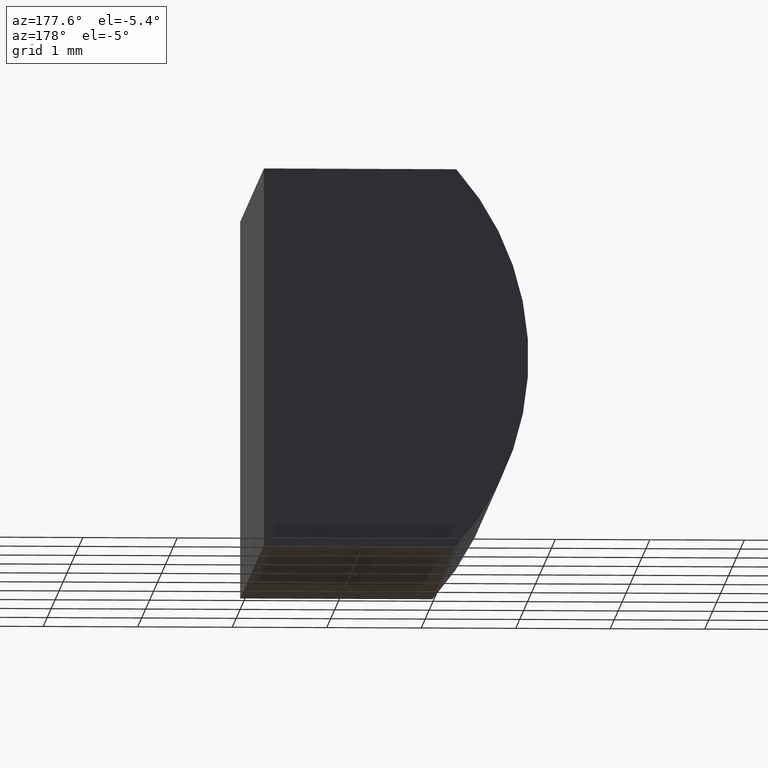
[diagram: clean part render]
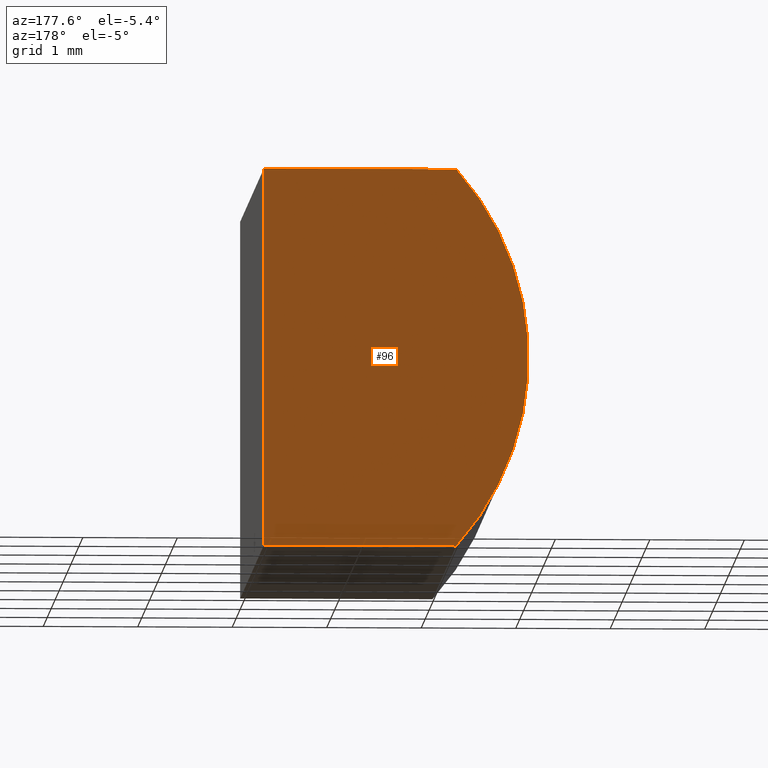
[diagram: same view with one face highlighted and labeled with its STEP entity id]
A machine part, auxiliary view. The second image highlights one B-rep face of the part: STEP entity #96.
In plain terms, the highlighted planar face has unit normal (0, 1, 0).
Its self-contained STEP definition (entity closure, byte-faithful):
#3 = DIRECTION ( 'NONE',  ( 0.0000000000000000000, 1.000000000000000000, 0.0000000000000000000 ) ) ;
#4 = DIRECTION ( 'NONE',  ( -0.0000000000000000000, -0.0000000000000000000, -1.000000000000000000 ) ) ;
#5 = EDGE_CURVE ( 'NONE', #169, #12, #99, .T. ) ;
#9 = CARTESIAN_POINT ( 'NONE',  ( 0.2000000000000005100, 6.000000000000000000, 2.000000000000000000 ) ) ;
#12 = VERTEX_POINT ( 'NONE', #79 ) ;
#19 = CARTESIAN_POINT ( 'NONE',  ( 0.0000000000000000000, 6.000000000000000000, 4.000000000000000000 ) ) ;
#24 = VECTOR ( 'NONE', #4, 1000.000000000000000 ) ;
#27 = EDGE_CURVE ( 'NONE', #133, #169, #115, .T. ) ;
#31 = ORIENTED_EDGE ( 'NONE', *, *, #27, .T. ) ;
#33 = DIRECTION ( 'NONE',  ( -1.000000000000000000, 0.0000000000000000000, 0.0000000000000000000 ) ) ;
#40 = LINE ( 'NONE', #87, #63 ) ;
#41 = DIRECTION ( 'NONE',  ( 0.0000000000000000000, -0.0000000000000000000, 1.000000000000000000 ) ) ;
#57 = DIRECTION ( 'NONE',  ( 0.0000000000000000000, 0.0000000000000000000, 1.000000000000000000 ) ) ;
#58 = DIRECTION ( 'NONE',  ( 0.0000000000000000000, 1.000000000000000000, 0.0000000000000000000 ) ) ;
#63 = VECTOR ( 'NONE', #33, 1000.000000000000000 ) ;
#66 = ORIENTED_EDGE ( 'NONE', *, *, #75, .T. ) ;
#68 = CARTESIAN_POINT ( 'NONE',  ( -2.036067977499789200, 6.000000000000000000, 0.0000000000000000000 ) ) ;
#74 = ORIENTED_EDGE ( 'NONE', *, *, #5, .T. ) ;
#75 = EDGE_CURVE ( 'NONE', #162, #133, #130, .T. ) ;
#77 = ORIENTED_EDGE ( 'NONE', *, *, #150, .T. ) ;
#79 = CARTESIAN_POINT ( 'NONE',  ( 0.0000000000000000000, 6.000000000000000000, 0.0000000000000000000 ) ) ;
#87 = CARTESIAN_POINT ( 'NONE',  ( 0.0000000000000000000, 6.000000000000000000, 0.0000000000000000000 ) ) ;
#96 = ADVANCED_FACE ( 'NONE', ( #125 ), #137, .T. ) ;
#99 = LINE ( 'NONE', #155, #24 ) ;
#115 = LINE ( 'NONE', #19, #128 ) ;
#125 = FACE_OUTER_BOUND ( 'NONE', #186, .T. ) ;
#128 = VECTOR ( 'NONE', #171, 1000.000000000000000 ) ;
#130 = CIRCLE ( 'NONE', #195, 3.000000000000000900 ) ;
#133 = VERTEX_POINT ( 'NONE', #203 ) ;
#137 = PLANE ( 'NONE',  #184 ) ;
#143 = CARTESIAN_POINT ( 'NONE',  ( 0.0000000000000000000, 6.000000000000000000, 4.000000000000000000 ) ) ;
#150 = EDGE_CURVE ( 'NONE', #12, #162, #40, .T. ) ;
#155 = CARTESIAN_POINT ( 'NONE',  ( 0.0000000000000000000, 6.000000000000000000, 0.0000000000000000000 ) ) ;
#162 = VERTEX_POINT ( 'NONE', #68 ) ;
#166 = CARTESIAN_POINT ( 'NONE',  ( 0.2000000000000005100, 6.000000000000000000, 2.000000000000000000 ) ) ;
#169 = VERTEX_POINT ( 'NONE', #143 ) ;
#171 = DIRECTION ( 'NONE',  ( 1.000000000000000000, -0.0000000000000000000, -0.0000000000000000000 ) ) ;
#184 = AXIS2_PLACEMENT_3D ( 'NONE', #166, #3, #41 ) ;
#186 = EDGE_LOOP ( 'NONE', ( #77, #66, #31, #74 ) ) ;
#195 = AXIS2_PLACEMENT_3D ( 'NONE', #9, #58, #57 ) ;
#203 = CARTESIAN_POINT ( 'NONE',  ( -2.036067977499789600, 6.000000000000000000, 4.000000000000000000 ) ) ;